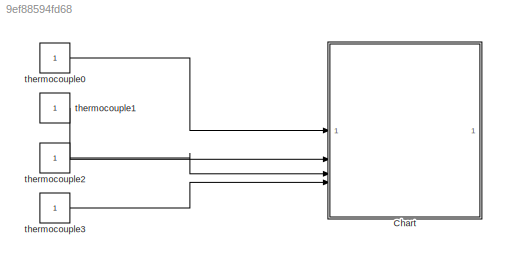
MODEL slx_9ef88594fd68
KIND model
CONFIG AbsTol = auto
CONFIG EnableMultiTasking = on
CONFIG FixedStep = 0.1
CONFIG MaxStep = auto
CONFIG MinStep = auto
CONFIG RelTol = 1e-3
CONFIG SampleTimeConstraint = Unconstrained
CONFIG SolverName = FixedStepDiscrete
CONFIG StartTime = 0.0
CONFIG StopTime = 10.0
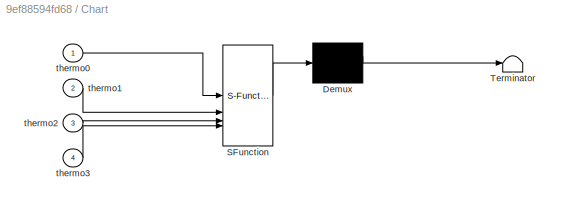
BLOCK [SubSystem] Chart
  ErrorFcn = Stateflow.Translate.translate
  PermitHierarchicalResolution = ExplicitOnly
  SFBlockType = Chart
  TreatAsAtomicUnit = on
BLOCK [Demux] Chart/ Demux 
  Outputs = 1
BLOCK [S-Function] Chart/ SFunction 
  EnableBusSupport = off
  FunctionName = sf_sfun
  PortCounts = [4 1]
  SFcnIsStateOwnerBlock = off
  SFunctionDeploymentMode = off
  Tag = Stateflow S-Function 3
BLOCK [Terminator] Chart/ Terminator 
BLOCK [Inport] Chart/thermo0
BLOCK [Inport] Chart/thermo1
  Port = 2
BLOCK [Inport] Chart/thermo2
  Port = 3
BLOCK [Inport] Chart/thermo3
  Port = 4
BLOCK [Constant] thermocouple0
BLOCK [Constant] thermocouple1
BLOCK [Constant] thermocouple2
BLOCK [Constant] thermocouple3
LINE thermocouple0:1 -> Chart:1
LINE thermocouple1:1 -> Chart:2
LINE thermocouple2:1 -> Chart:3
LINE thermocouple3:1 -> Chart:4
CHART Chart states=1 transitions=1
  STATE_LABEL 'get temp\nentry: '
CHART  states=0 transitions=0
